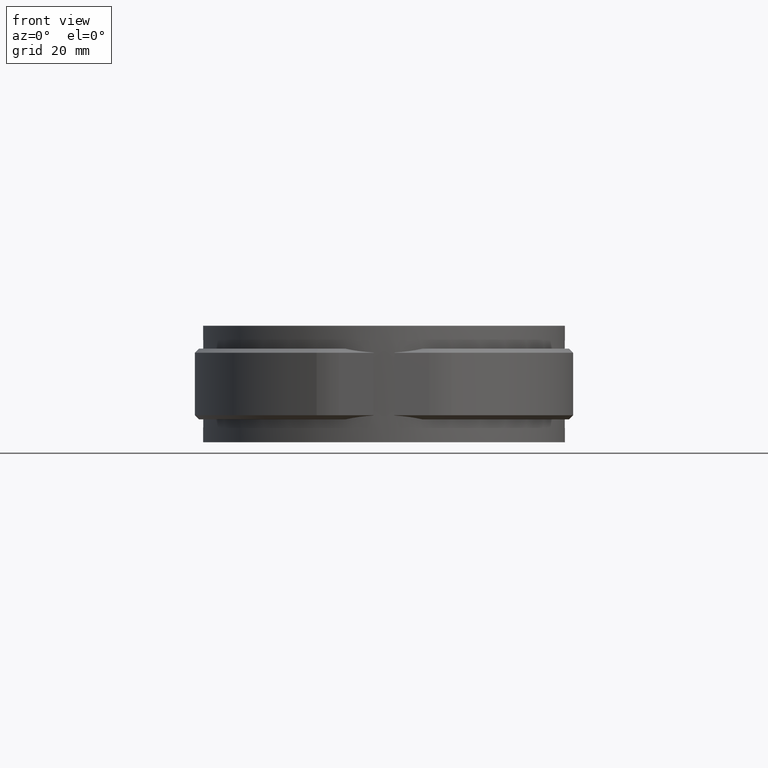
[diagram: clean part render]
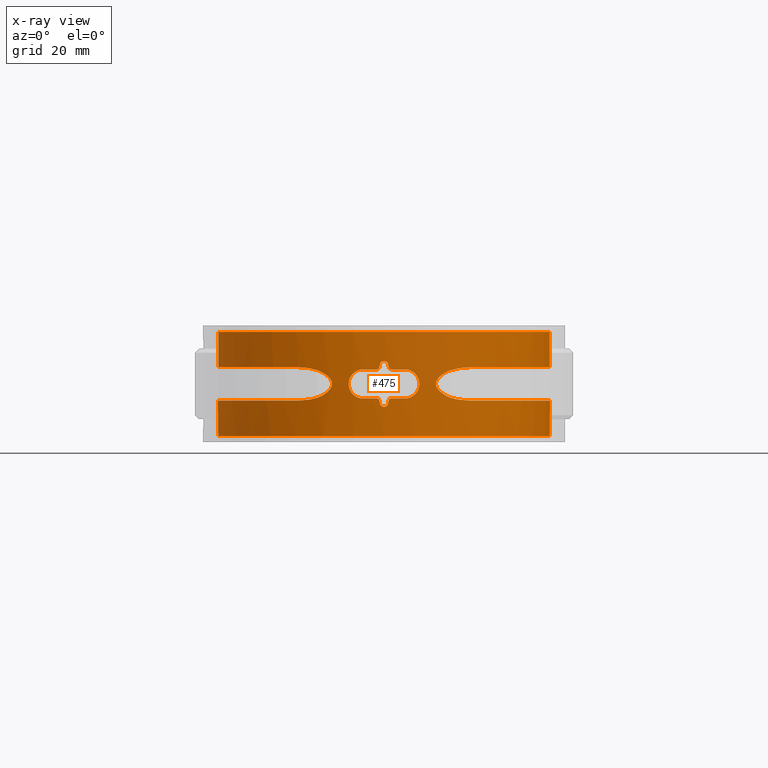
[diagram: x-ray — body ghosted, one internal face saturated and labeled with its STEP entity id]
A machine part, front view, then the same camera in x-ray: the body is ghosted and one INTERNAL B-rep face — a face not visible from any outside direction — is saturated and labeled: STEP entity #475.
In plain terms, the highlighted cylindrical surface (partial cylindrical patch) has radius 40 mm, axis along (0, 0, 1).
Its self-contained STEP definition (entity closure, byte-faithful):
#475 = ADVANCED_FACE( '', ( #855, #856 ), #857, .F. );
#855 = FACE_OUTER_BOUND( '', #1785, .T. );
#856 = FACE_BOUND( '', #1786, .T. );
#857 = CYLINDRICAL_SURFACE( '', #1787, 40.0000000000000 );
#1785 = EDGE_LOOP( '', ( #3266, #3267, #3268, #3269, #3270, #3271, #3272, #3273, #3274, #3275, #3276, #3277, #3278, #3279, #3280, #3281 ) );
#1786 = EDGE_LOOP( '', ( #3282, #3283, #3284, #3285, #3286, #3287, #3288, #3289, #3290, #3291, #3292, #3293, #3294, #3295, #3296, #3297 ) );
#1787 = AXIS2_PLACEMENT_3D( '', #3298, #3299, #3300 );
#3266 = ORIENTED_EDGE( '', *, *, #7348, .F. );
#3267 = ORIENTED_EDGE( '', *, *, #7342, .F. );
#3268 = ORIENTED_EDGE( '', *, *, #7356, .T. );
#3269 = ORIENTED_EDGE( '', *, *, #7357, .T. );
#3270 = ORIENTED_EDGE( '', *, *, #7358, .T. );
#3271 = ORIENTED_EDGE( '', *, *, #7359, .T. );
#3272 = ORIENTED_EDGE( '', *, *, #7360, .T. );
#3273 = ORIENTED_EDGE( '', *, *, #7361, .T. );
#3274 = ORIENTED_EDGE( '', *, *, #7362, .T. );
#3275 = ORIENTED_EDGE( '', *, *, #7363, .T. );
#3276 = ORIENTED_EDGE( '', *, *, #7288, .F. );
#3277 = ORIENTED_EDGE( '', *, *, #7344, .F. );
#3278 = ORIENTED_EDGE( '', *, *, #7350, .F. );
#3279 = ORIENTED_EDGE( '', *, *, #7364, .F. );
#3280 = ORIENTED_EDGE( '', *, *, #7365, .F. );
#3281 = ORIENTED_EDGE( '', *, *, #7366, .F. );
#3282 = ORIENTED_EDGE( '', *, *, #7367, .F. );
#3283 = ORIENTED_EDGE( '', *, *, #7368, .F. );
#3284 = ORIENTED_EDGE( '', *, *, #7369, .F. );
#3285 = ORIENTED_EDGE( '', *, *, #7370, .F. );
#3286 = ORIENTED_EDGE( '', *, *, #7371, .F. );
#3287 = ORIENTED_EDGE( '', *, *, #7351, .F. );
#3288 = ORIENTED_EDGE( '', *, *, #7372, .F. );
#3289 = ORIENTED_EDGE( '', *, *, #7373, .F. );
#3290 = ORIENTED_EDGE( '', *, *, #7374, .F. );
#3291 = ORIENTED_EDGE( '', *, *, #7375, .F. );
#3292 = ORIENTED_EDGE( '', *, *, #7376, .F. );
#3293 = ORIENTED_EDGE( '', *, *, #7377, .F. );
#3294 = ORIENTED_EDGE( '', *, *, #7378, .F. );
#3295 = ORIENTED_EDGE( '', *, *, #7379, .F. );
#3296 = ORIENTED_EDGE( '', *, *, #7380, .F. );
#3297 = ORIENTED_EDGE( '', *, *, #7381, .F. );
#3298 = CARTESIAN_POINT( '', ( 0.000000000000000, 0.000000000000000, -12.5000000000000 ) );
#3299 = DIRECTION( '', ( 0.000000000000000, 0.000000000000000, 1.00000000000000 ) );
#3300 = DIRECTION( '', ( -1.00000000000000, 6.16283340149655E-017, 0.000000000000000 ) );
#7288 = EDGE_CURVE( '', #8297, #8299, #8300, .T. );
#7342 = EDGE_CURVE( '', #8396, #8397, #8398, .T. );
#7344 = EDGE_CURVE( '', #8399, #8297, #8401, .T. );
#7348 = EDGE_CURVE( '', #8397, #8405, #8406, .T. );
#7350 = EDGE_CURVE( '', #8407, #8399, #8409, .T. );
#7351 = EDGE_CURVE( '', #8410, #8411, #8412, .T. );
#7356 = EDGE_CURVE( '', #8396, #8418, #8419, .T. );
#7357 = EDGE_CURVE( '', #8418, #8420, #8421, .T. );
#7358 = EDGE_CURVE( '', #8420, #8422, #8423, .T. );
#7359 = EDGE_CURVE( '', #8422, #8424, #8425, .T. );
#7360 = EDGE_CURVE( '', #8424, #8426, #8427, .T. );
#7361 = EDGE_CURVE( '', #8426, #8428, #8429, .T. );
#7362 = EDGE_CURVE( '', #8428, #8430, #8431, .T. );
#7363 = EDGE_CURVE( '', #8430, #8299, #8432, .T. );
#7364 = EDGE_CURVE( '', #8433, #8407, #8434, .T. );
#7365 = EDGE_CURVE( '', #8435, #8433, #8436, .T. );
#7366 = EDGE_CURVE( '', #8405, #8435, #8437, .T. );
#7367 = EDGE_CURVE( '', #8438, #8439, #8440, .T. );
#7368 = EDGE_CURVE( '', #8441, #8438, #8442, .T. );
#7369 = EDGE_CURVE( '', #8443, #8441, #8444, .F. );
#7370 = EDGE_CURVE( '', #8445, #8443, #8446, .T. );
#7371 = EDGE_CURVE( '', #8411, #8445, #8447, .T. );
#7372 = EDGE_CURVE( '', #8448, #8410, #8449, .F. );
#7373 = EDGE_CURVE( '', #8450, #8448, #8451, .T. );
#7374 = EDGE_CURVE( '', #8452, #8450, #8453, .T. );
#7375 = EDGE_CURVE( '', #8454, #8452, #8455, .T. );
#7376 = EDGE_CURVE( '', #8456, #8454, #8457, .F. );
#7377 = EDGE_CURVE( '', #8458, #8456, #8459, .T. );
#7378 = EDGE_CURVE( '', #8460, #8458, #8461, .T. );
#7379 = EDGE_CURVE( '', #8462, #8460, #8463, .T. );
#7380 = EDGE_CURVE( '', #8464, #8462, #8465, .F. );
#7381 = EDGE_CURVE( '', #8439, #8464, #8466, .T. );
#8297 = VERTEX_POINT( '', #9972 );
#8299 = VERTEX_POINT( '', #9974 );
#8300 = CIRCLE( '', #9975, 40.0000000000000 );
#8396 = VERTEX_POINT( '', #10557 );
#8397 = VERTEX_POINT( '', #10558 );
#8398 = LINE( '', #10559, #10560 );
#8399 = VERTEX_POINT( '', #10561 );
#8401 = LINE( '', #10596, #10597 );
#8405 = VERTEX_POINT( '', #10622 );
#8406 = B_SPLINE_CURVE_WITH_KNOTS( '', 3, ( #10623, #10624, #10625, #10626, #10627, #10628, #10629, #10630, #10631, #10632, #10633, #10634, #10635, #10636, #10637, #10638, #10639, #10640, #10641, #10642, #10643, #10644, #10645, #10646, #10647, #10648, #10649, #10650, #10651, #10652, #10653, #10654, #10655, #10656, #10657, #10658, #10659, #10660, #10661, #10662, #10663, #10664, #10665, #10666, #10667, #10668, #10669, #10670, #10671, #10672, #10673, #10674, #10675, #10676 ), .UNSPECIFIED., .F., .F., ( 4, 2, 2, 2, 2, 2, 2, 2, 2, 2, 2, 2, 2, 2, 2, 2, 2, 2, 2, 2, 2, 2, 2, 2, 2, 2, 4 ), ( 7.80625564189563E-018, 0.00610277583917852, 0.00915416375876777, 0.0106798577185624, 0.0122055516783570, 0.0183083275175355, 0.0213597154371248, 0.0228854093969194, 0.0244111033567141, 0.0305138791958926, 0.0366166550350711, 0.0381423489948657, 0.0396680429546603, 0.0427194308742496, 0.0488222067134281, 0.0518735946330173, 0.0549249825526066, 0.0610277583917851, 0.0640791463113743, 0.0671305342309636, 0.0732333100701420, 0.0762846979897313, 0.0793360859093205, 0.0854388617484990, 0.0884902496680883, 0.0915416375876775, 0.0976444134268560 ), .UNSPECIFIED. );
#8407 = VERTEX_POINT( '', #10677 );
#8409 = B_SPLINE_CURVE_WITH_KNOTS( '', 3, ( #10692, #10693, #10694, #10695, #10696, #10697, #10698, #10699, #10700, #10701, #10702, #10703, #10704, #10705, #10706, #10707, #10708, #10709, #10710, #10711, #10712, #10713, #10714, #10715, #10716, #10717, #10718, #10719, #10720, #10721, #10722, #10723, #10724, #10725, #10726, #10727, #10728, #10729, #10730, #10731, #10732, #10733, #10734, #10735, #10736, #10737, #10738, #10739, #10740, #10741, #10742, #10743, #10744, #10745 ), .UNSPECIFIED., .F., .F., ( 4, 2, 2, 2, 2, 2, 2, 2, 2, 2, 2, 2, 2, 2, 2, 2, 2, 2, 2, 2, 2, 2, 2, 2, 2, 2, 4 ), ( 5.69031608876084E-017, 0.00610273427301494, 0.00915410140952238, 0.0106797849777761, 0.0122054685460298, 0.0183082028190447, 0.0213595699555522, 0.0228852535238059, 0.0244109370920596, 0.0305136713650745, 0.0366164056380894, 0.0381420892063431, 0.0396677727745968, 0.0427191399111042, 0.0488218741841191, 0.0518732413206266, 0.0549246084571340, 0.0610273427301489, 0.0640787098666564, 0.0671300770031638, 0.0732328112761787, 0.0762841784126861, 0.0793355455491936, 0.0854382798222085, 0.0884896469587159, 0.0915410140952234, 0.0976437483682383 ), .UNSPECIFIED. );
#8410 = VERTEX_POINT( '', #10746 );
#8411 = VERTEX_POINT( '', #10747 );
#8412 = CIRCLE( '', #10748, 40.0000000000000 );
#8418 = VERTEX_POINT( '', #10757 );
#8419 = CIRCLE( '', #10758, 40.0000000000000 );
#8420 = VERTEX_POINT( '', #10759 );
#8421 = LINE( '', #10760, #10761 );
#8422 = VERTEX_POINT( '', #10762 );
#8423 = B_SPLINE_CURVE_WITH_KNOTS( '', 3, ( #10763, #10764, #10765, #10766, #10767, #10768, #10769, #10770, #10771, #10772, #10773, #10774, #10775, #10776, #10777, #10778, #10779, #10780, #10781, #10782, #10783, #10784, #10785, #10786, #10787, #10788, #10789, #10790, #10791, #10792, #10793, #10794, #10795, #10796, #10797, #10798, #10799, #10800, #10801, #10802, #10803, #10804, #10805, #10806, #10807, #10808, #10809, #10810, #10811, #10812, #10813, #10814, #10815, #10816 ), .UNSPECIFIED., .F., .F., ( 4, 2, 2, 2, 2, 2, 2, 2, 2, 2, 2, 2, 2, 2, 2, 2, 2, 2, 2, 2, 2, 2, 2, 2, 2, 2, 4 ), ( 8.67361737988404E-019, 0.00610271918897303, 0.00915407878345954, 0.0106797585807028, 0.0122054383779461, 0.0183081575669191, 0.0213595171614057, 0.0228851969586489, 0.0244108767558922, 0.0305135959448652, 0.0366163151338383, 0.0381419949310816, 0.0396676747283248, 0.0427190343228114, 0.0488217535117845, 0.0518731131062710, 0.0549244727007576, 0.0610271918897307, 0.0640785514842173, 0.0671299110787038, 0.0732326302676769, 0.0762839898621635, 0.0793353494566500, 0.0854380686456231, 0.0884894282401097, 0.0915407878345962, 0.0976435070235693 ), .UNSPECIFIED. );
#8424 = VERTEX_POINT( '', #10817 );
#8425 = B_SPLINE_CURVE_WITH_KNOTS( '', 3, ( #10818, #10819, #10820, #10821, #10822, #10823, #10824, #10825, #10826, #10827 ), .UNSPECIFIED., .F., .F., ( 4, 2, 2, 2, 4 ), ( 0.000000000000000, 0.00176684477246879, 0.00353368954493759, 0.00530053431740638, 0.00706737908987517 ), .UNSPECIFIED. );
#8426 = VERTEX_POINT( '', #10828 );
#8427 = B_SPLINE_CURVE_WITH_KNOTS( '', 3, ( #10829, #10830, #10831, #10832, #10833, #10834, #10835, #10836, #10837, #10838, #10839, #10840, #10841, #10842, #10843, #10844, #10845, #10846, #10847, #10848, #10849, #10850, #10851, #10852 ), .UNSPECIFIED., .F., .F., ( 4, 2, 2, 2, 2, 2, 2, 2, 2, 2, 2, 4 ), ( 4.90653893338680E-018, 0.000833127164306652, 0.00166625432861330, 0.00208281791076663, 0.00249938149291995, 0.00291594507507328, 0.00333250865722660, 0.00374907223937993, 0.00416563582153326, 0.00499876298583991, 0.00583189015014657, 0.00666501731445322 ), .UNSPECIFIED. );
#8428 = VERTEX_POINT( '', #10853 );
#8429 = B_SPLINE_CURVE_WITH_KNOTS( '', 3, ( #10854, #10855, #10856, #10857, #10858, #10859, #10860, #10861, #10862, #10863 ), .UNSPECIFIED., .F., .F., ( 4, 2, 2, 2, 4 ), ( 1.12711388471372E-015, 0.00175655975364134, 0.00351311950728156, 0.00526967926092178, 0.00702623901456199 ), .UNSPECIFIED. );
#8430 = VERTEX_POINT( '', #10864 );
#8431 = B_SPLINE_CURVE_WITH_KNOTS( '', 3, ( #10865, #10866, #10867, #10868, #10869, #10870, #10871, #10872, #10873, #10874, #10875, #10876, #10877, #10878, #10879, #10880, #10881, #10882, #10883, #10884, #10885, #10886, #10887, #10888, #10889, #10890, #10891, #10892, #10893, #10894, #10895, #10896, #10897, #10898, #10899, #10900, #10901, #10902, #10903, #10904, #10905, #10906, #10907, #10908, #10909, #10910, #10911, #10912, #10913, #10914, #10915, #10916, #10917, #10918 ), .UNSPECIFIED., .F., .F., ( 4, 2, 2, 2, 2, 2, 2, 2, 2, 2, 2, 2, 2, 2, 2, 2, 2, 2, 2, 2, 2, 2, 2, 2, 2, 2, 4 ), ( 5.69031608876084E-017, 0.00610273427301502, 0.00915410140952251, 0.0106797849777763, 0.0122054685460300, 0.0183082028190450, 0.0213595699555524, 0.0228852535238062, 0.0244109370920599, 0.0305136713650748, 0.0366164056380897, 0.0381420892063434, 0.0396677727745971, 0.0427191399111045, 0.0488218741841194, 0.0518732413206268, 0.0549246084571342, 0.0610273427301491, 0.0640787098666566, 0.0671300770031640, 0.0732328112761789, 0.0762841784126863, 0.0793355455491937, 0.0854382798222086, 0.0884896469587160, 0.0915410140952235, 0.0976437483682384 ), .UNSPECIFIED. );
#8432 = LINE( '', #10919, #10920 );
#8433 = VERTEX_POINT( '', #10921 );
#8434 = B_SPLINE_CURVE_WITH_KNOTS( '', 3, ( #10922, #10923, #10924, #10925, #10926, #10927, #10928, #10929, #10930, #10931 ), .UNSPECIFIED., .F., .F., ( 4, 2, 2, 2, 4 ), ( 0.000000000000000, 0.00175636630344163, 0.00351273260688327, 0.00526909891032491, 0.00702546521376655 ), .UNSPECIFIED. );
#8435 = VERTEX_POINT( '', #10932 );
#8436 = B_SPLINE_CURVE_WITH_KNOTS( '', 3, ( #10933, #10934, #10935, #10936, #10937, #10938, #10939, #10940, #10941, #10942, #10943, #10944, #10945, #10946, #10947, #10948, #10949, #10950, #10951, #10952, #10953, #10954, #10955, #10956 ), .UNSPECIFIED., .F., .F., ( 4, 2, 2, 2, 2, 2, 2, 2, 2, 2, 2, 4 ), ( 0.000000000000000, 0.000833282898715841, 0.00166656579743168, 0.00208320724678960, 0.00249984869614752, 0.00291649014550544, 0.00333313159486337, 0.00374977304422129, 0.00416641449357921, 0.00499969739229504, 0.00583298029101088, 0.00666626318972671 ), .UNSPECIFIED. );
#8437 = B_SPLINE_CURVE_WITH_KNOTS( '', 3, ( #10957, #10958, #10959, #10960, #10961, #10962, #10963, #10964, #10965, #10966 ), .UNSPECIFIED., .F., .F., ( 4, 2, 2, 2, 4 ), ( 0.000000000000000, 0.00176649911596389, 0.00353299823192777, 0.00529949734789166, 0.00706599646385555 ), .UNSPECIFIED. );
#8438 = VERTEX_POINT( '', #10967 );
#8439 = VERTEX_POINT( '', #10968 );
#8440 = B_SPLINE_CURVE_WITH_KNOTS( '', 3, ( #10969, #10970, #10971, #10972, #10973, #10974, #10975, #10976, #10977, #10978 ), .UNSPECIFIED., .F., .F., ( 4, 2, 2, 2, 4 ), ( 2.16840434497101E-019, 0.000671575606551869, 0.00134315121310374, 0.00201472681965561, 0.00268630242620747 ), .UNSPECIFIED. );
#8441 = VERTEX_POINT( '', #10979 );
#8442 = ELLIPSE( '', #10980, 182.222408133822, 40.0000000000000 );
#8443 = VERTEX_POINT( '', #10981 );
#8444 = B_SPLINE_CURVE_WITH_KNOTS( '', 3, ( #10982, #10983, #10984, #10985, #10986, #10987 ), .UNSPECIFIED., .F., .F., ( 4, 2, 4 ), ( 0.00156391016468112, 0.00189980761059275, 0.00223570505650438 ), .UNSPECIFIED. );
#8445 = VERTEX_POINT( '', #10988 );
#8446 = CIRCLE( '', #10989, 40.0000000000000 );
#8447 = B_SPLINE_CURVE_WITH_KNOTS( '', 3, ( #10990, #10991, #10992, #10993, #10994, #10995, #10996, #10997, #10998, #10999, #11000, #11001, #11002, #11003, #11004, #11005, #11006, #11007, #11008, #11009, #11010, #11011, #11012, #11013, #11014, #11015, #11016, #11017, #11018, #11019, #11020, #11021, #11022, #11023 ), .UNSPECIFIED., .F., .F., ( 4, 2, 2, 2, 2, 2, 2, 2, 2, 2, 2, 2, 2, 2, 2, 2, 4 ), ( 3.49644694633735E-018, 0.000688355682282628, 0.00137671136456525, 0.00206506704684788, 0.00275342272913050, 0.00344177841141312, 0.00413013409369574, 0.00481848977597837, 0.00550684545826099, 0.00619520114054361, 0.00688355682282623, 0.00757191250510885, 0.00826026818739147, 0.00894862386967409, 0.00963697955195672, 0.0103253352342393, 0.0110136909165220 ), .UNSPECIFIED. );
#8448 = VERTEX_POINT( '', #11024 );
#8449 = B_SPLINE_CURVE_WITH_KNOTS( '', 3, ( #11025, #11026, #11027, #11028, #11029, #11030 ), .UNSPECIFIED., .F., .F., ( 4, 2, 4 ), ( 0.000671964529204668, 0.00100786979542922, 0.00134377506165377 ), .UNSPECIFIED. );
#8450 = VERTEX_POINT( '', #11031 );
#8451 = ELLIPSE( '', #11032, 182.222315178002, 40.0000000000000 );
#8452 = VERTEX_POINT( '', #11033 );
#8453 = B_SPLINE_CURVE_WITH_KNOTS( '', 3, ( #11034, #11035, #11036, #11037, #11038, #11039, #11040, #11041, #11042, #11043 ), .UNSPECIFIED., .F., .F., ( 4, 2, 2, 2, 4 ), ( 1.08420217248550E-019, 0.000671575606551873, 0.00134315121310375, 0.00201472681965562, 0.00268630242620749 ), .UNSPECIFIED. );
#8454 = VERTEX_POINT( '', #11044 );
#8455 = ELLIPSE( '', #11045, 182.222408133861, 40.0000000000000 );
#8456 = VERTEX_POINT( '', #11046 );
#8457 = B_SPLINE_CURVE_WITH_KNOTS( '', 3, ( #11047, #11048, #11049, #11050, #11051, #11052 ), .UNSPECIFIED., .F., .F., ( 4, 2, 4 ), ( 5.44596817759155E-011, 0.000335897909198825, 0.000671795763937969 ), .UNSPECIFIED. );
#8458 = VERTEX_POINT( '', #11053 );
#8459 = CIRCLE( '', #11054, 40.0000000000000 );
#8460 = VERTEX_POINT( '', #11055 );
#8461 = B_SPLINE_CURVE_WITH_KNOTS( '', 3, ( #11056, #11057, #11058, #11059, #11060, #11061, #11062, #11063, #11064, #11065, #11066, #11067, #11068, #11069, #11070, #11071, #11072, #11073, #11074, #11075, #11076, #11077, #11078, #11079, #11080, #11081, #11082, #11083, #11084, #11085, #11086, #11087, #11088, #11089 ), .UNSPECIFIED., .F., .F., ( 4, 2, 2, 2, 2, 2, 2, 2, 2, 2, 2, 2, 2, 2, 2, 2, 4 ), ( 2.63797774002510E-018, 0.000688355682282619, 0.00137671136456524, 0.00206506704684785, 0.00275342272913047, 0.00344177841141309, 0.00413013409369571, 0.00481848977597832, 0.00550684545826094, 0.00619520114054356, 0.00688355682282618, 0.00757191250510879, 0.00826026818739141, 0.00894862386967403, 0.00963697955195665, 0.0103253352342393, 0.0110136909165219 ), .UNSPECIFIED. );
#8462 = VERTEX_POINT( '', #11090 );
#8463 = CIRCLE( '', #11091, 40.0000000000000 );
#8464 = VERTEX_POINT( '', #11092 );
#8465 = B_SPLINE_CURVE_WITH_KNOTS( '', 3, ( #11093, #11094, #11095, #11096, #11097, #11098 ), .UNSPECIFIED., .F., .F., ( 4, 2, 4 ), ( 0.00223588753289778, 0.00257179190502350, 0.00290769627714922 ), .UNSPECIFIED. );
#8466 = ELLIPSE( '', #11099, 182.222315177989, 40.0000000000000 );
#9972 = CARTESIAN_POINT( '', ( 6.51162790697674, 39.4664249964585, 12.5000000000000 ) );
#9974 = CARTESIAN_POINT( '', ( -6.51162790697671, 39.4664249964585, 12.5000000000000 ) );
#9975 = AXIS2_PLACEMENT_3D( '', #14315, #14316, #14317 );
#10557 = CARTESIAN_POINT( '', ( 6.51162790697674, 39.4664249964585, -12.5000000000000 ) );
#10558 = CARTESIAN_POINT( '', ( 6.51162790697675, 39.4664249964585, -3.99476153045297 ) );
#10559 = CARTESIAN_POINT( '', ( 6.51162790697674, 39.4664249964585, -12.5000000000000 ) );
#10560 = VECTOR( '', #14377, 1000.00000000000 );
#10561 = CARTESIAN_POINT( '', ( 6.51162790697675, 39.4664249964585, 3.99476153045367 ) );
#10596 = CARTESIAN_POINT( '', ( 6.51162790697674, 39.4664249964585, -12.5000000000000 ) );
#10597 = VECTOR( '', #14378, 1000.00000000000 );
#10622 = CARTESIAN_POINT( '', ( 20.5104165732763, -34.3412987611769, -3.99799169661705 ) );
#10623 = CARTESIAN_POINT( '', ( 6.51162790697678, 39.4664249964585, -3.99476153045293 ) );
#10624 = CARTESIAN_POINT( '', ( 8.53495288352019, 39.1325934071183, -3.99272135034209 ) );
#10625 = CARTESIAN_POINT( '', ( 10.5130646831966, 38.6473354466690, -3.99109379799083 ) );
#10626 = CARTESIAN_POINT( '', ( 13.4139605666969, 37.6974923364301, -3.99138417544951 ) );
#10627 = CARTESIAN_POINT( '', ( 14.3698314792586, 37.3437209194955, -3.99188604097960 ) );
#10628 = CARTESIAN_POINT( '', ( 15.7867477058704, 36.7564958080210, -3.99306110457947 ) );
#10629 = CARTESIAN_POINT( '', ( 16.2571002465550, 36.5508999075978, -3.99352102260368 ) );
#10630 = CARTESIAN_POINT( '', ( 17.1863506177110, 36.1232742830280, -3.99449983454583 ) );
#10631 = CARTESIAN_POINT( '', ( 17.6454921252865, 35.9011907080728, -3.99501858090477 ) );
#10632 = CARTESIAN_POINT( '', ( 19.9142055997671, 34.7500590063607, -3.99752468546485 ) );
#10633 = CARTESIAN_POINT( '', ( 21.6432622283324, 33.6995735144706, -3.99853823006595 ) );
#10634 = CARTESIAN_POINT( '', ( 24.1103084167790, 31.9329929975748, -3.99671644096764 ) );
#10635 = CARTESIAN_POINT( '', ( 24.9114757536921, 31.3121859618917, -3.99584621120915 ) );
#10636 = CARTESIAN_POINT( '', ( 26.0809127174933, 30.3322377233731, -3.99469213113096 ) );
#10637 = CARTESIAN_POINT( '', ( 26.4653335033275, 29.9974565218648, -3.99433033597600 ) );
#10638 = CARTESIAN_POINT( '', ( 27.2232276385591, 29.3113826381956, -3.99371461343297 ) );
#10639 = CARTESIAN_POINT( '', ( 27.5972286834889, 28.9595256767964, -3.99346072322826 ) );
#10640 = CARTESIAN_POINT( '', ( 29.4243300924912, 27.1732834517494, -3.99256952339721 ) );
#10641 = CARTESIAN_POINT( '', ( 30.7604293012254, 25.6492260526370, -3.99327631224663 ) );
#10642 = CARTESIAN_POINT( '', ( 33.1896895559695, 22.4172102428764, -3.99619699329636 ) );
#10643 = CARTESIAN_POINT( '', ( 34.2828551818520, 20.7092552906601, -3.99838919671339 ) );
#10644 = CARTESIAN_POINT( '', ( 35.4918408752563, 18.4551061949691, -3.99785814351189 ) );
#10645 = CARTESIAN_POINT( '', ( 35.7256871279989, 17.9982227126964, -3.99759953614053 ) );
#10646 = CARTESIAN_POINT( '', ( 36.1734905648128, 17.0803782727690, -3.99691654428396 ) );
#10647 = CARTESIAN_POINT( '', ( 36.3879895697995, 16.6184379773271, -3.99649210114288 ) );
#10648 = CARTESIAN_POINT( '', ( 37.0036792887563, 15.2236914724160, -3.99514082090619 ) );
#10649 = CARTESIAN_POINT( '', ( 37.3771028562828, 14.2819725280083, -3.99414715338225 ) );
#10650 = CARTESIAN_POINT( '', ( 38.3879555260021, 11.4216942444368, -3.99184066921029 ) );
#10651 = CARTESIAN_POINT( '', ( 38.9166017834184, 9.46821728036047, -3.99138115538722 ) );
#10652 = CARTESIAN_POINT( '', ( 39.4869722618034, 6.46655084298329, -3.99291293349495 ) );
#10653 = CARTESIAN_POINT( '', ( 39.6401520032055, 5.44974454825950, -3.99375387918314 ) );
#10654 = CARTESIAN_POINT( '', ( 39.8664708324323, 3.42138420019470, -3.99559726087782 ) );
#10655 = CARTESIAN_POINT( '', ( 39.9402789577391, 2.40825778991679, -3.99659645785729 ) );
#10656 = CARTESIAN_POINT( '', ( 40.0463223200979, -0.628031729822428, -3.99861588427725 ) );
#10657 = CARTESIAN_POINT( '', ( 39.9638282323543, -2.64812258463584, -3.99749168546499 ) );
#10658 = CARTESIAN_POINT( '', ( 39.6088083871164, -5.67206560300475, -3.99509394730883 ) );
#10659 = CARTESIAN_POINT( '', ( 39.4517602893787, -6.67901006802348, -3.99428179945951 ) );
#10660 = CARTESIAN_POINT( '', ( 39.0579210067179, -8.69076360582572, -3.99316619616957 ) );
#10661 = CARTESIAN_POINT( '', ( 38.8233714784960, -9.68383502088077, -3.99287194327849 ) );
#10662 = CARTESIAN_POINT( '', ( 38.0114565729935, -12.6195286708804, -3.99300023729264 ) );
#10663 = CARTESIAN_POINT( '', ( 37.3258843982272, -14.5216612545182, -3.99459919663546 ) );
#10664 = CARTESIAN_POINT( '', ( 36.0828943758750, -17.2930565946176, -3.99696275774958 ) );
#10665 = CARTESIAN_POINT( '', ( 35.6326397847529, -18.2031629627892, -3.99770284661138 ) );
#10666 = CARTESIAN_POINT( '', ( 34.6586892231728, -19.9953849978276, -3.99819060014801 ) );
#10667 = CARTESIAN_POINT( '', ( 34.1332620946227, -20.8796259724485, -3.99775518657564 ) );
#10668 = CARTESIAN_POINT( '', ( 32.4721589238086, -23.4459451228804, -3.99537450661080 ) );
#10669 = CARTESIAN_POINT( '', ( 31.2455139415073, -25.0560803262923, -3.99288213986612 ) );
#10670 = CARTESIAN_POINT( '', ( 29.2308090365786, -27.3236551135406, -3.99155132480044 ) );
#10671 = CARTESIAN_POINT( '', ( 28.5299899182725, -28.0548006175147, -3.99146164808447 ) );
#10672 = CARTESIAN_POINT( '', ( 27.0690036503259, -29.4669510435653, -3.99204566302713 ) );
#10673 = CARTESIAN_POINT( '', ( 26.3073883294554, -30.1491496918134, -3.99272209688942 ) );
#10674 = CARTESIAN_POINT( '', ( 23.9402287907548, -32.1102020683592, -3.99536784361436 ) );
#10675 = CARTESIAN_POINT( '', ( 22.2709806426754, -33.2897690265604, -3.99811024948978 ) );
#10676 = CARTESIAN_POINT( '', ( 20.5104038265172, -34.3412774205210, -3.99800921237569 ) );
#10677 = CARTESIAN_POINT( '', ( 20.5109887475866, -34.3409290914446, 3.99801484445683 ) );
#10692 = CARTESIAN_POINT( '', ( 20.5109882974306, -34.3409283372278, 3.99800924580514 ) );
#10693 = CARTESIAN_POINT( '', ( 22.2715330879467, -33.2893984181536, 3.99810959668888 ) );
#10694 = CARTESIAN_POINT( '', ( 23.9345561109925, -32.1135178742119, 3.99537839159577 ) );
#10695 = CARTESIAN_POINT( '', ( 26.2861494808505, -30.1674260932596, 3.99274376367593 ) );
#10696 = CARTESIAN_POINT( '', ( 27.0460845264157, -29.4882153727816, 3.99206065571324 ) );
#10697 = CARTESIAN_POINT( '', ( 28.1495570073374, -28.4229453753663, 3.99161091132247 ) );
#10698 = CARTESIAN_POINT( '', ( 28.5119557418210, -28.0594007208250, 3.99155406740326 ) );
#10699 = CARTESIAN_POINT( '', ( 29.2200768554196, -27.3212133258895, 3.99163511123742 ) );
#10700 = CARTESIAN_POINT( '', ( 29.5660061155469, -26.9464314043607, 3.99177246316105 ) );
#10701 = CARTESIAN_POINT( '', ( 31.2556251721938, -25.0445208372399, 3.99288992747179 ) );
#10702 = CARTESIAN_POINT( '', ( 32.4799254529248, -23.4338736601455, 3.99538538670038 ) );
#10703 = CARTESIAN_POINT( '', ( 34.1287433693654, -20.8866434370102, 3.99774883572219 ) );
#10704 = CARTESIAN_POINT( '', ( 34.6469414550380, -20.0155950625087, 3.99818732102674 ) );
#10705 = CARTESIAN_POINT( '', ( 35.3763232564733, -18.6755027329199, 3.99783561704992 ) );
#10706 = CARTESIAN_POINT( '', ( 35.6114559355239, -18.2232125944033, 3.99759028359356 ) );
#10707 = CARTESIAN_POINT( '', ( 36.0654883801928, -17.3072764757129, 3.99696214990444 ) );
#10708 = CARTESIAN_POINT( '', ( 36.2846729279584, -16.8429114533698, 3.99657871606682 ) );
#10709 = CARTESIAN_POINT( '', ( 37.3308023145222, -14.5117087206730, 3.99459126003318 ) );
#10710 = CARTESIAN_POINT( '', ( 38.0160375614398, -12.6042709573956, 3.99299667182716 ) );
#10711 = CARTESIAN_POINT( '', ( 39.0931063675589, -8.70722646857068, 3.99283217268103 ) );
#10712 = CARTESIAN_POINT( '', ( 39.4849453931600, -6.71762127384640, 3.99426417695261 ) );
#10713 = CARTESIAN_POINT( '', ( 39.7845626885578, -4.17735334245157, 3.99627930905256 ) );
#10714 = CARTESIAN_POINT( '', ( 39.8348711060311, -3.66657645980669, 3.99667903375525 ) );
#10715 = CARTESIAN_POINT( '', ( 39.9154873135517, -2.64851118393074, 3.99736689146744 ) );
#10716 = CARTESIAN_POINT( '', ( 39.9459407032109, -2.14011314594360, 3.99765588699895 ) );
#10717 = CARTESIAN_POINT( '', ( 40.0081568516306, -0.616795835644384, 3.99818599317970 ) );
#10718 = CARTESIAN_POINT( '', ( 40.0108176665087, 0.396249291709651, 3.99793698936537 ) );
#10719 = CARTESIAN_POINT( '', ( 39.9041225089171, 3.42799973285768, 3.99591349107488 ) );
#10720 = CARTESIAN_POINT( '', ( 39.6807546505770, 5.43936316762629, 3.99344784108578 ) );
#10721 = CARTESIAN_POINT( '', ( 39.1124052007271, 8.44138612677411, 3.99189990015437 ) );
#10722 = CARTESIAN_POINT( '', ( 38.8826275567704, 9.44365550374432, 3.99170496507878 ) );
#10723 = CARTESIAN_POINT( '', ( 38.3505131843943, 11.4140042704354, 3.99206503787619 ) );
#10724 = CARTESIAN_POINT( '', ( 38.0482241026974, 12.3837885076414, 3.99261496407873 ) );
#10725 = CARTESIAN_POINT( '', ( 37.0351224594609, 15.2480164315569, 3.99492922641165 ) );
#10726 = CARTESIAN_POINT( '', ( 36.2186755864039, 17.0975901577316, 3.99752138871845 ) );
#10727 = CARTESIAN_POINT( '', ( 34.7810612620351, 19.7815012093443, 3.99817896233448 ) );
#10728 = CARTESIAN_POINT( '', ( 34.2662168974678, 20.6610001063688, 3.99771800175472 ) );
#10729 = CARTESIAN_POINT( '', ( 33.1631070255308, 22.3888114528858, 3.99634858014351 ) );
#10730 = CARTESIAN_POINT( '', ( 32.5812198709236, 23.2270302552789, 3.99546469923904 ) );
#10731 = CARTESIAN_POINT( '', ( 30.7507558664753, 25.6615335603481, 3.99326616040069 ) );
#10732 = CARTESIAN_POINT( '', ( 29.4163121842757, 27.1805226277727, 3.99257650312152 ) );
#10733 = CARTESIAN_POINT( '', ( 27.2448791865162, 29.3042934793273, 3.99363106285371 ) );
#10734 = CARTESIAN_POINT( '', ( 26.4926528952148, 29.9863216261370, 3.99428699982917 ) );
#10735 = CARTESIAN_POINT( '', ( 24.9301106923875, 31.2974395591359, 3.99582664963345 ) );
#10736 = CARTESIAN_POINT( '', ( 24.1174031698361, 31.9278752279466, 3.99671097108936 ) );
#10737 = CARTESIAN_POINT( '', ( 21.6319841517251, 33.7077241974377, 3.99854701947517 ) );
#10738 = CARTESIAN_POINT( '', ( 19.9009684017686, 34.7568798347864, 3.99751018171557 ) );
#10739 = CARTESIAN_POINT( '', ( 17.1959045575560, 36.1292565138271, 3.99452189054558 ) );
#10740 = CARTESIAN_POINT( '', ( 16.2760470562788, 36.5530085697250, 3.99347140645353 ) );
#10741 = CARTESIAN_POINT( '', ( 14.3994671574065, 37.3321240871634, 3.99190620847736 ) );
#10742 = CARTESIAN_POINT( '', ( 13.4409630620114, 37.6880671698395, 3.99139244250216 ) );
#10743 = CARTESIAN_POINT( '', ( 10.5201569120612, 38.6461625349318, 3.99108355244924 ) );
#10744 = CARTESIAN_POINT( '', ( 8.53493835746082, 39.1325958037958, 3.99272136498990 ) );
#10745 = CARTESIAN_POINT( '', ( 6.51162790697672, 39.4664249964585, 3.99476153045369 ) );
#10746 = CARTESIAN_POINT( '', ( 1.64999999892706, -39.9659542611401, 3.49999999999999 ) );
#10747 = CARTESIAN_POINT( '', ( 5.00000000000004, -39.6862696659689, 3.50000000000000 ) );
#10748 = AXIS2_PLACEMENT_3D( '', #14382, #14383, #14384 );
#10757 = CARTESIAN_POINT( '', ( -6.51162790697671, 39.4664249964585, -12.5000000000000 ) );
#10758 = AXIS2_PLACEMENT_3D( '', #14391, #14392, #14393 );
#10759 = CARTESIAN_POINT( '', ( -6.51162790697668, 39.4664249964585, -3.99476153045294 ) );
#10760 = CARTESIAN_POINT( '', ( -6.51162790697668, 39.4664249964585, -12.5000000000000 ) );
#10761 = VECTOR( '', #14394, 1000.00000000000 );
#10762 = CARTESIAN_POINT( '', ( -20.5111791141636, -34.3408052408477, -3.99801823463930 ) );
#10763 = CARTESIAN_POINT( '', ( -6.51162790697669, 39.4664249964585, -3.99476153045293 ) );
#10764 = CARTESIAN_POINT( '', ( -8.53493410161190, 39.1325965059751, -3.99272136928046 ) );
#10765 = CARTESIAN_POINT( '', ( -10.5130279539011, 38.6473444393327, -3.99109382323871 ) );
#10766 = CARTESIAN_POINT( '', ( -13.4138981469341, 37.6975142913516, -3.99138415473972 ) );
#10767 = CARTESIAN_POINT( '', ( -14.3697607028862, 37.3437478880455, -3.99188599754767 ) );
#10768 = CARTESIAN_POINT( '', ( -15.7866647188094, 36.7565313828974, -3.99306102812655 ) );
#10769 = CARTESIAN_POINT( '', ( -16.2570132740849, 36.5509385274049, -3.99352093544687 ) );
#10770 = CARTESIAN_POINT( '', ( -17.1862564451431, 36.1233190228926, -3.99449973089709 ) );
#10771 = CARTESIAN_POINT( '', ( -17.6453944480713, 35.9012386518557, -3.99501847116553 ) );
#10772 = CARTESIAN_POINT( '', ( -19.9140908735876, 34.7501236850572, -3.99752456609860 ) );
#10773 = CARTESIAN_POINT( '', ( -21.6431353644786, 33.6996538457358, -3.99853825890261 ) );
#10774 = CARTESIAN_POINT( '', ( -24.1101657408788, 31.9331004191454, -3.99671657874546 ) );
#10775 = CARTESIAN_POINT( '', ( -24.9113282092944, 31.3123030201590, -3.99584636552089 ) );
#10776 = CARTESIAN_POINT( '', ( -26.0807585232278, 30.3323702213896, -3.99469227894919 ) );
#10777 = CARTESIAN_POINT( '', ( -26.4651772014952, 29.9975943309479, -3.99433047650688 ) );
#10778 = CARTESIAN_POINT( '', ( -27.2230673512573, 29.3115314158024, -3.99371473010867 ) );
#10779 = CARTESIAN_POINT( '', ( -27.5970669096102, 28.9596797637231, -3.99346082295790 ) );
#10780 = CARTESIAN_POINT( '', ( -29.4241630850068, 27.1734629968515, -3.99256952159442 ) );
#10781 = CARTESIAN_POINT( '', ( -30.7602601070854, 25.6494274784087, -3.99327617095895 ) );
#10782 = CARTESIAN_POINT( '', ( -33.1895204973078, 22.4174588431535, -3.99619672791392 ) );
#10783 = CARTESIAN_POINT( '', ( -34.2826884357538, 20.7095291775460, -3.99838899190819 ) );
#10784 = CARTESIAN_POINT( '', ( -35.4916805526932, 18.4554143645365, -3.99785828341769 ) );
#10785 = CARTESIAN_POINT( '', ( -35.7255289582317, 17.9985365534567, -3.99759973174239 ) );
#10786 = CARTESIAN_POINT( '', ( -36.1733369698436, 17.0807034362675, -3.99691682415534 ) );
#10787 = CARTESIAN_POINT( '', ( -36.3878384005917, 16.6187688466108, -3.99649241006720 ) );
#10788 = CARTESIAN_POINT( '', ( -37.0035358320510, 15.2240395987642, -3.99514118143811 ) );
#10789 = CARTESIAN_POINT( '', ( -37.3769651203869, 14.2823323449758, -3.99414750055720 ) );
#10790 = CARTESIAN_POINT( '', ( -38.3878368878961, 11.4220897545120, -3.99184087412865 ) );
#10791 = CARTESIAN_POINT( '', ( -38.9164984279059, 9.46863740462781, -3.99138112135355 ) );
#10792 = CARTESIAN_POINT( '', ( -39.4868968660539, 6.46700950494150, -3.99291260928581 ) );
#10793 = CARTESIAN_POINT( '', ( -39.6400870404560, 5.45021559767397, -3.99375347196206 ) );
#10794 = CARTESIAN_POINT( '', ( -39.8664286460136, 3.42187341208868, -3.99559679541962 ) );
#10795 = CARTESIAN_POINT( '', ( -39.9402486919307, 2.40875606879276, -3.99659601362352 ) );
#10796 = CARTESIAN_POINT( '', ( -40.0463296861551, -0.627506300075867, -3.99861576039096 ) );
#10797 = CARTESIAN_POINT( '', ( -39.9638631516003, -2.64757912032356, -3.99749209647623 ) );
#10798 = CARTESIAN_POINT( '', ( -39.6088897877061, -5.67149522479770, -3.99509440952334 ) );
#10799 = CARTESIAN_POINT( '', ( -39.4518580481491, -6.67843074166569, -3.99428221447026 ) );
#10800 = CARTESIAN_POINT( '', ( -39.0580535599030, -8.69016643881368, -3.99316643362948 ) );
#10801 = CARTESIAN_POINT( '', ( -38.8235199511766, -9.68323892945350, -3.99287204872080 ) );
#10802 = CARTESIAN_POINT( '', ( -38.0116570400583, -12.6189222727684, -3.99299994792829 ) );
#10803 = CARTESIAN_POINT( '', ( -37.3261215577155, -14.5210487588005, -3.99459862915447 ) );
#10804 = CARTESIAN_POINT( '', ( -36.0831911667867, -17.2924367027996, -3.99696225162839 ) );
#10805 = CARTESIAN_POINT( '', ( -35.6329572225748, -18.2025408989627, -3.99770244182726 ) );
#10806 = CARTESIAN_POINT( '', ( -34.6590498399018, -19.9947593083653, -3.99819066519196 ) );
#10807 = CARTESIAN_POINT( '', ( -34.1336433828667, -20.8790022988834, -3.99775561337607 ) );
#10808 = CARTESIAN_POINT( '', ( -32.4725990536716, -23.4453343128538, -3.99537537658930 ) );
#10809 = CARTESIAN_POINT( '', ( -31.2459946651288, -25.0554792458370, -3.99288282880547 ) );
#10810 = CARTESIAN_POINT( '', ( -29.2313541452719, -27.3230715796495, -3.99155149928256 ) );
#10811 = CARTESIAN_POINT( '', ( -28.5305570733498, -28.0542234264463, -3.99146161178900 ) );
#10812 = CARTESIAN_POINT( '', ( -27.0696163667225, -29.4663877788762, -3.99204522783427 ) );
#10813 = CARTESIAN_POINT( '', ( -26.3080275081629, -30.1485916828735, -3.99272146967918 ) );
#10814 = CARTESIAN_POINT( '', ( -23.9409280027775, -32.1096797506511, -3.99536688783765 ) );
#10815 = CARTESIAN_POINT( '', ( -22.2717197425104, -33.2892733814454, -3.99810937919603 ) );
#10816 = CARTESIAN_POINT( '', ( -20.5111831318918, -34.3408119666672, -3.99800925689699 ) );
#10817 = CARTESIAN_POINT( '', ( -14.3856735861856, -37.3235635204536, -2.50807055297062 ) );
#10818 = CARTESIAN_POINT( '', ( -20.5111831466144, -34.3408119578737, -3.99801447652890 ) );
#10819 = CARTESIAN_POINT( '', ( -20.0046201523807, -34.6433734221387, -3.99525321085695 ) );
#10820 = CARTESIAN_POINT( '', ( -19.4928079910565, -34.9338678123432, -3.97024487781494 ) );
#10821 = CARTESIAN_POINT( '', ( -18.4591524341130, -35.4909055269184, -3.87026097864936 ) );
#10822 = CARTESIAN_POINT( '', ( -17.9370733470117, -35.7574620161664, -3.79524994121727 ) );
#10823 = CARTESIAN_POINT( '', ( -16.8954594184341, -36.2612484773168, -3.57970890534575 ) );
#10824 = CARTESIAN_POINT( '', ( -16.3713128843512, -36.5005327490764, -3.43848763445183 ) );
#10825 = CARTESIAN_POINT( '', ( -15.3510662682343, -36.9412173723607, -3.06006310840644 ) );
#10826 = CARTESIAN_POINT( '', ( -14.8543140755018, -37.1429878563104, -2.82456888713855 ) );
#10827 = CARTESIAN_POINT( '', ( -14.3857268107801, -37.3235966129424, -2.50801064749024 ) );
#10828 = CARTESIAN_POINT( '', ( -14.3854481427290, -37.3236611307944, 2.50790012231364 ) );
#10829 = CARTESIAN_POINT( '', ( -14.3857267345960, -37.3235966423056, -2.50801035582645 ) );
#10830 = CARTESIAN_POINT( '', ( -14.1647665823223, -37.4087618636617, -2.35978320794990 ) );
#10831 = CARTESIAN_POINT( '', ( -13.9498359725864, -37.4893343146131, -2.20236875930206 ) );
#10832 = CARTESIAN_POINT( '', ( -13.5378597206025, -37.6400646280022, -1.86169039180106 ) );
#10833 = CARTESIAN_POINT( '', ( -13.3403464066952, -37.7103721363725, -1.67860501177913 ) );
#10834 = CARTESIAN_POINT( '', ( -13.0678420299307, -37.8053006456681, -1.37242531796424 ) );
#10835 = CARTESIAN_POINT( '', ( -12.9820927073644, -37.8348016335943, -1.26613881393278 ) );
#10836 = CARTESIAN_POINT( '', ( -12.8243212406101, -37.8885699180329, -1.04229317517548 ) );
#10837 = CARTESIAN_POINT( '', ( -12.7517712838772, -37.9130125423430, -0.923765720556635 ) );
#10838 = CARTESIAN_POINT( '', ( -12.6289855856139, -37.9540895555477, -0.675942426005272 ) );
#10839 = CARTESIAN_POINT( '', ( -12.5788664471775, -37.9706923861318, -0.547295209779475 ) );
#10840 = CARTESIAN_POINT( '', ( -12.5087951376739, -37.9938337836797, -0.277387517797046 ) );
#10841 = CARTESIAN_POINT( '', ( -12.4897915359728, -38.0000672030333, -0.136956996867024 ) );
#10842 = CARTESIAN_POINT( '', ( -12.4902038794771, -37.9999316722569, 0.141579756595228 ) );
#10843 = CARTESIAN_POINT( '', ( -12.5097950062975, -37.9935049030468, 0.282821384097255 ) );
#10844 = CARTESIAN_POINT( '', ( -12.5804942158815, -37.9701534261003, 0.551922443589739 ) );
#10845 = CARTESIAN_POINT( '', ( -12.6319109425111, -37.9531167594723, 0.682818861561631 ) );
#10846 = CARTESIAN_POINT( '', ( -12.8172865974349, -37.8910826917084, 1.05397280695212 ) );
#10847 = CARTESIAN_POINT( '', ( -12.9804010409485, -37.8357771595087, 1.27461400762338 ) );
#10848 = CARTESIAN_POINT( '', ( -13.3429219969135, -37.7094587210177, 1.68105626160541 ) );
#10849 = CARTESIAN_POINT( '', ( -13.5396451128762, -37.6394190503800, 1.86324931365991 ) );
#10850 = CARTESIAN_POINT( '', ( -13.9505241130231, -37.4890748512777, 2.20285479456798 ) );
#10851 = CARTESIAN_POINT( '', ( -14.1649601192486, -37.4086856652635, 2.35990339285905 ) );
#10852 = CARTESIAN_POINT( '', ( -14.3854906548164, -37.3236876342650, 2.50785198078896 ) );
#10853 = CARTESIAN_POINT( '', ( -20.5109887475866, -34.3409290914446, 3.99801484445683 ) );
#10854 = CARTESIAN_POINT( '', ( -14.3854911651623, -37.3236874375654, 2.50785144995025 ) );
#10855 = CARTESIAN_POINT( '', ( -14.8540779742574, -37.1430822544997, 2.82442956681819 ) );
#10856 = CARTESIAN_POINT( '', ( -15.3508255001802, -36.9413174309053, 3.05995687908289 ) );
#10857 = CARTESIAN_POINT( '', ( -16.3710758821186, -36.5006390564577, 3.43841664380319 ) );
#10858 = CARTESIAN_POINT( '', ( -16.8952310476515, -36.2613547752886, 3.57965165041338 ) );
#10859 = CARTESIAN_POINT( '', ( -17.9368360945194, -35.7575809194528, 3.79521084031850 ) );
#10860 = CARTESIAN_POINT( '', ( -18.4589018193985, -35.4910361793968, 3.87022923521494 ) );
#10861 = CARTESIAN_POINT( '', ( -19.4925936793178, -34.9339877070807, 3.97023164626254 ) );
#10862 = CARTESIAN_POINT( '', ( -20.0044181387419, -34.6434901811733, 3.99524627221623 ) );
#10863 = CARTESIAN_POINT( '', ( -20.5109883029578, -34.3409283339272, 3.99801341331802 ) );
#10864 = CARTESIAN_POINT( '', ( -6.51162790697669, 39.4664249964585, 3.99476153045367 ) );
#10865 = CARTESIAN_POINT( '', ( -20.5109882974306, -34.3409283372278, 3.99800924580514 ) );
#10866 = CARTESIAN_POINT( '', ( -22.2715330879467, -33.2893984181536, 3.99810959668888 ) );
#10867 = CARTESIAN_POINT( '', ( -23.9345561109925, -32.1135178742119, 3.99537839159577 ) );
#10868 = CARTESIAN_POINT( '', ( -26.2861494808505, -30.1674260932596, 3.99274376367593 ) );
#10869 = CARTESIAN_POINT( '', ( -27.0460845264157, -29.4882153727816, 3.99206065571324 ) );
#10870 = CARTESIAN_POINT( '', ( -28.1495570073374, -28.4229453753663, 3.99161091132247 ) );
#10871 = CARTESIAN_POINT( '', ( -28.5119557418210, -28.0594007208249, 3.99155406740328 ) );
#10872 = CARTESIAN_POINT( '', ( -29.2200768554196, -27.3212133258895, 3.99163511123743 ) );
#10873 = CARTESIAN_POINT( '', ( -29.5660061155469, -26.9464314043607, 3.99177246316105 ) );
#10874 = CARTESIAN_POINT( '', ( -31.2556251721938, -25.0445208372399, 3.99288992747179 ) );
#10875 = CARTESIAN_POINT( '', ( -32.4799254529248, -23.4338736601455, 3.99538538670038 ) );
#10876 = CARTESIAN_POINT( '', ( -34.1287433693655, -20.8866434370102, 3.99774883572219 ) );
#10877 = CARTESIAN_POINT( '', ( -34.6469414550379, -20.0155950625087, 3.99818732102675 ) );
#10878 = CARTESIAN_POINT( '', ( -35.3763232564733, -18.6755027329199, 3.99783561704993 ) );
#10879 = CARTESIAN_POINT( '', ( -35.6114559355240, -18.2232125944033, 3.99759028359355 ) );
#10880 = CARTESIAN_POINT( '', ( -36.0654883801928, -17.3072764757129, 3.99696214990443 ) );
#10881 = CARTESIAN_POINT( '', ( -36.2846729279584, -16.8429114533698, 3.99657871606682 ) );
#10882 = CARTESIAN_POINT( '', ( -37.3308023145222, -14.5117087206730, 3.99459126003318 ) );
#10883 = CARTESIAN_POINT( '', ( -38.0160375614398, -12.6042709573956, 3.99299667182716 ) );
#10884 = CARTESIAN_POINT( '', ( -39.0931063675589, -8.70722646857065, 3.99283217268104 ) );
#10885 = CARTESIAN_POINT( '', ( -39.4849453931601, -6.71762127384637, 3.99426417695258 ) );
#10886 = CARTESIAN_POINT( '', ( -39.7845626885578, -4.17735334245154, 3.99627930905253 ) );
#10887 = CARTESIAN_POINT( '', ( -39.8348711060310, -3.66657645980667, 3.99667903375525 ) );
#10888 = CARTESIAN_POINT( '', ( -39.9154873135517, -2.64851118393072, 3.99736689146744 ) );
#10889 = CARTESIAN_POINT( '', ( -39.9459407032110, -2.14011314594357, 3.99765588699894 ) );
#10890 = CARTESIAN_POINT( '', ( -40.0081568516307, -0.616795835644345, 3.99818599317969 ) );
#10891 = CARTESIAN_POINT( '', ( -40.0108176665087, 0.396249291709669, 3.99793698936537 ) );
#10892 = CARTESIAN_POINT( '', ( -39.9041225089171, 3.42799973285770, 3.99591349107488 ) );
#10893 = CARTESIAN_POINT( '', ( -39.6807546505770, 5.43936316762633, 3.99344784108578 ) );
#10894 = CARTESIAN_POINT( '', ( -39.1124052007270, 8.44138612677414, 3.99189990015437 ) );
#10895 = CARTESIAN_POINT( '', ( -38.8826275567704, 9.44365550374438, 3.99170496507878 ) );
#10896 = CARTESIAN_POINT( '', ( -38.3505131843943, 11.4140042704355, 3.99206503787618 ) );
#10897 = CARTESIAN_POINT( '', ( -38.0482241026974, 12.3837885076414, 3.99261496407873 ) );
#10898 = CARTESIAN_POINT( '', ( -37.0351224594609, 15.2480164315569, 3.99492922641165 ) );
#10899 = CARTESIAN_POINT( '', ( -36.2186755864039, 17.0975901577317, 3.99752138871844 ) );
#10900 = CARTESIAN_POINT( '', ( -34.7810612620351, 19.7815012093444, 3.99817896233446 ) );
#10901 = CARTESIAN_POINT( '', ( -34.2662168974678, 20.6610001063689, 3.99771800175472 ) );
#10902 = CARTESIAN_POINT( '', ( -33.1631070255307, 22.3888114528859, 3.99634858014350 ) );
#10903 = CARTESIAN_POINT( '', ( -32.5812198709235, 23.2270302552790, 3.99546469923904 ) );
#10904 = CARTESIAN_POINT( '', ( -30.7507558664752, 25.6615335603481, 3.99326616040069 ) );
#10905 = CARTESIAN_POINT( '', ( -29.4163121842757, 27.1805226277727, 3.99257650312151 ) );
#10906 = CARTESIAN_POINT( '', ( -27.2448791865161, 29.3042934793273, 3.99363106285370 ) );
#10907 = CARTESIAN_POINT( '', ( -26.4926528952147, 29.9863216261370, 3.99428699982917 ) );
#10908 = CARTESIAN_POINT( '', ( -24.9301106923875, 31.2974395591360, 3.99582664963345 ) );
#10909 = CARTESIAN_POINT( '', ( -24.1174031698361, 31.9278752279467, 3.99671097108934 ) );
#10910 = CARTESIAN_POINT( '', ( -21.6319841517251, 33.7077241974378, 3.99854701947516 ) );
#10911 = CARTESIAN_POINT( '', ( -19.9009684017686, 34.7568798347864, 3.99751018171557 ) );
#10912 = CARTESIAN_POINT( '', ( -17.1959045575560, 36.1292565138271, 3.99452189054558 ) );
#10913 = CARTESIAN_POINT( '', ( -16.2760470562788, 36.5530085697250, 3.99347140645353 ) );
#10914 = CARTESIAN_POINT( '', ( -14.3994671574064, 37.3321240871634, 3.99190620847736 ) );
#10915 = CARTESIAN_POINT( '', ( -13.4409630620113, 37.6880671698395, 3.99139244250215 ) );
#10916 = CARTESIAN_POINT( '', ( -10.5201569120611, 38.6461625349319, 3.99108355244923 ) );
#10917 = CARTESIAN_POINT( '', ( -8.53493835746075, 39.1325958037958, 3.99272136498991 ) );
#10918 = CARTESIAN_POINT( '', ( -6.51162790697669, 39.4664249964585, 3.99476153045369 ) );
#10919 = CARTESIAN_POINT( '', ( -6.51162790697668, 39.4664249964585, -12.5000000000000 ) );
#10920 = VECTOR( '', #14395, 1000.00000000000 );
#10921 = CARTESIAN_POINT( '', ( 14.3863679528086, -37.3236073850590, 2.50799476088408 ) );
#10922 = CARTESIAN_POINT( '', ( 14.3861170341492, -37.3234462058334, 2.50827425239846 ) );
#10923 = CARTESIAN_POINT( '', ( 14.8546740483540, -37.1428434821099, 2.82477863946930 ) );
#10924 = CARTESIAN_POINT( '', ( 15.3513939463986, -36.9410804417595, 3.06020444129883 ) );
#10925 = CARTESIAN_POINT( '', ( 16.3715443209787, -36.5004281734927, 3.43855367463757 ) );
#10926 = CARTESIAN_POINT( '', ( 16.8956409224285, -36.2611628146991, 3.57975157261569 ) );
#10927 = CARTESIAN_POINT( '', ( 17.9371298746228, -35.7574325520538, 3.79525652863054 ) );
#10928 = CARTESIAN_POINT( '', ( 18.4591350641112, -35.4909137859299, 3.87025742183895 ) );
#10929 = CARTESIAN_POINT( '', ( 19.4927090228779, -34.9339222479358, 3.97023718120375 ) );
#10930 = CARTESIAN_POINT( '', ( 20.0044753396786, -34.6434560164667, 3.99524658467650 ) );
#10931 = CARTESIAN_POINT( '', ( 20.5109883029578, -34.3409283339273, 3.99801341331800 ) );
#10932 = CARTESIAN_POINT( '', ( 14.3862499314187, -37.3235564469837, -2.50808420158611 ) );
#10933 = CARTESIAN_POINT( '', ( 14.3860947161935, -37.3234548081593, -2.50825719713393 ) );
#10934 = CARTESIAN_POINT( '', ( 14.1650870578726, -37.4086408425699, -2.36001323719475 ) );
#10935 = CARTESIAN_POINT( '', ( 13.9501097855115, -37.4892327119462, -2.20257982690629 ) );
#10936 = CARTESIAN_POINT( '', ( 13.5380430790204, -37.6399989631889, -1.86185735902235 ) );
#10937 = CARTESIAN_POINT( '', ( 13.3404876528961, -37.7103223997224, -1.67874910508176 ) );
#10938 = CARTESIAN_POINT( '', ( 13.0679194948984, -37.8052739264229, -1.37251965373304 ) );
#10939 = CARTESIAN_POINT( '', ( 12.9821503086353, -37.8347819102422, -1.26621528646245 ) );
#10940 = CARTESIAN_POINT( '', ( 12.8243435176662, -37.8885624189212, -1.04233003109608 ) );
#10941 = CARTESIAN_POINT( '', ( 12.7517778447100, -37.9130103553005, -0.923780278463759 ) );
#10942 = CARTESIAN_POINT( '', ( 12.6289703198475, -37.9540946547585, -0.675910298488296 ) );
#10943 = CARTESIAN_POINT( '', ( 12.5788442894505, -37.9706997267578, -0.547237630403153 ) );
#10944 = CARTESIAN_POINT( '', ( 12.5087724600411, -37.9938412501390, -0.277272378068751 ) );
#10945 = CARTESIAN_POINT( '', ( 12.4897766770491, -38.0000720869277, -0.136815328058038 ) );
#10946 = CARTESIAN_POINT( '', ( 12.4902192571288, -37.9999266178648, 0.141776128584608 ) );
#10947 = CARTESIAN_POINT( '', ( 12.5098330110884, -37.9934924156073, 0.283042220904126 ) );
#10948 = CARTESIAN_POINT( '', ( 12.5805827348952, -37.9701241234551, 0.552183055542391 ) );
#10949 = CARTESIAN_POINT( '', ( 12.6320293759243, -37.9530773914136, 0.683099301925560 ) );
#10950 = CARTESIAN_POINT( '', ( 12.8174880599234, -37.8910147444629, 1.05428938312896 ) );
#10951 = CARTESIAN_POINT( '', ( 12.9806665395828, -37.8356863614195, 1.27495833504793 ) );
#10952 = CARTESIAN_POINT( '', ( 13.3432936797184, -37.7093274937162, 1.68142623138996 ) );
#10953 = CARTESIAN_POINT( '', ( 13.5400686835995, -37.6392670050605, 1.86363113609139 ) );
#10954 = CARTESIAN_POINT( '', ( 13.9510505232334, -37.4888792835024, 2.20325809028995 ) );
#10955 = CARTESIAN_POINT( '', ( 14.1655374447815, -37.4084674067596, 2.36031632119534 ) );
#10956 = CARTESIAN_POINT( '', ( 14.3861187358324, -37.3234455499292, 2.50827330858808 ) );
#10957 = CARTESIAN_POINT( '', ( 20.5104037522459, -34.3412774648797, -3.99801021010479 ) );
#10958 = CARTESIAN_POINT( '', ( 20.0039330120169, -34.6437682321909, -3.99522610628912 ) );
#10959 = CARTESIAN_POINT( '', ( 19.4922162489714, -34.9341960345377, -3.97020353619534 ) );
#10960 = CARTESIAN_POINT( '', ( 18.4587580812988, -35.4911087030577, -3.87020692166320 ) );
#10961 = CARTESIAN_POINT( '', ( 17.9367791468211, -35.7576077515026, -3.79519734491721 ) );
#10962 = CARTESIAN_POINT( '', ( 16.8953676649282, -36.2612894108724, -3.57968163322709 ) );
#10963 = CARTESIAN_POINT( '', ( 16.3713259584831, -36.5005253092654, -3.43848478151927 ) );
#10964 = CARTESIAN_POINT( '', ( 15.3512707078213, -36.9411308590630, -3.06014663874500 ) );
#10965 = CARTESIAN_POINT( '', ( 14.8546010641153, -37.1428719546064, -2.82473136519487 ) );
#10966 = CARTESIAN_POINT( '', ( 14.3860933732801, -37.3234553257767, -2.50825826972603 ) );
#10967 = CARTESIAN_POINT( '', ( 0.975609999999996, -39.9881005441356, -4.71951200000000 ) );
#10968 = CARTESIAN_POINT( '', ( -0.975609757981835, -39.9881005500403, -4.71951218674743 ) );
#10969 = CARTESIAN_POINT( '', ( 0.975609999999993, -39.9881005441356, -4.71951200000000 ) );
#10970 = CARTESIAN_POINT( '', ( 0.925763371331523, -39.9893166776537, -4.94105267974691 ) );
#10971 = CARTESIAN_POINT( '', ( 0.802005910252929, -39.9923521624574, -5.13901836554673 ) );
#10972 = CARTESIAN_POINT( '', ( 0.447394593685771, -39.9978909824460, -5.42271116270368 ) );
#10973 = CARTESIAN_POINT( '', ( 0.227081912778195, -40.0000000011068, -5.50000007041390 ) );
#10974 = CARTESIAN_POINT( '', ( -0.227082302699954, -39.9999999988932, -5.49999993645324 ) );
#10975 = CARTESIAN_POINT( '', ( -0.447406497363359, -39.9978908204863, -5.42270356701545 ) );
#10976 = CARTESIAN_POINT( '', ( -0.802004817872634, -39.9923521555502, -5.13901699201277 ) );
#10977 = CARTESIAN_POINT( '', ( -0.925763086522174, -39.9893166843005, -4.94105285866284 ) );
#10978 = CARTESIAN_POINT( '', ( -0.975609757981832, -39.9881005500403, -4.71951218674743 ) );
#10979 = CARTESIAN_POINT( '', ( 1.16219512100790, -39.9831127165045, -3.89024390662615 ) );
#10980 = AXIS2_PLACEMENT_3D( '', #14396, #14397, #14398 );
#10981 = CARTESIAN_POINT( '', ( 1.64999999999988, -39.9659542610958, -3.49999999999873 ) );
#10982 = CARTESIAN_POINT( '', ( 1.16219512100909, -39.9831127165045, -3.89024390662650 ) );
#10983 = CARTESIAN_POINT( '', ( 1.18682260422235, -39.9823968657643, -3.78078842129123 ) );
#10984 = CARTESIAN_POINT( '', ( 1.25012550674397, -39.9805561039435, -3.67956490605386 ) );
#10985 = CARTESIAN_POINT( '', ( 1.42530054507878, -39.9746944768735, -3.53946942039952 ) );
#10986 = CARTESIAN_POINT( '', ( 1.53790570917231, -39.9705820895384, -3.50000000000008 ) );
#10987 = CARTESIAN_POINT( '', ( 1.64999999999980, -39.9659542610958, -3.50000000000003 ) );
#10988 = CARTESIAN_POINT( '', ( 5.00000000000004, -39.6862696659689, -3.50000000000000 ) );
#10989 = AXIS2_PLACEMENT_3D( '', #14399, #14400, #14401 );
#10990 = CARTESIAN_POINT( '', ( 5.00000000000003, -39.6862696659689, 3.50000000000000 ) );
#10991 = CARTESIAN_POINT( '', ( 5.23095136509755, -39.6571725289689, 3.50000000000000 ) );
#10992 = CARTESIAN_POINT( '', ( 5.45779676559707, -39.6265464331456, 3.47736695698800 ) );
#10993 = CARTESIAN_POINT( '', ( 5.90368738495562, -39.5625732607665, 3.38895381237562 ) );
#10994 = CARTESIAN_POINT( '', ( 6.12495009148325, -39.5288598727917, 3.32215734466161 ) );
#10995 = CARTESIAN_POINT( '', ( 6.54745611585484, -39.4610769604292, 3.14763747920894 ) );
#10996 = CARTESIAN_POINT( '', ( 6.74780210960525, -39.4272017682410, 3.04089310841412 ) );
#10997 = CARTESIAN_POINT( '', ( 7.12705106877609, -39.3604143226039, 2.78881639086541 ) );
#10998 = CARTESIAN_POINT( '', ( 7.30698205245323, -39.3272812944937, 2.64192430844929 ) );
#10999 = CARTESIAN_POINT( '', ( 7.63007981653904, -39.2658747861849, 2.32047633053014 ) );
#11000 = CARTESIAN_POINT( '', ( 7.77520387809054, -39.2372697970723, 2.14500769878537 ) );
#11001 = CARTESIAN_POINT( '', ( 8.03185498078005, -39.1855386851047, 1.76370915072088 ) );
#11002 = CARTESIAN_POINT( '', ( 8.14181960942831, -39.1627230303021, 1.55924891990340 ) );
#11003 = CARTESIAN_POINT( '', ( 8.31798701716319, -39.1256845778183, 1.13721141673162 ) );
#11004 = CARTESIAN_POINT( '', ( 8.38572508055197, -39.1111467974904, 0.916951362354175 ) );
#11005 = CARTESIAN_POINT( '', ( 8.47719495973564, -39.0914230305841, 0.461572674657913 ) );
#11006 = CARTESIAN_POINT( '', ( 8.49978697422126, -39.0864889883925, 0.232882672202097 ) );
#11007 = CARTESIAN_POINT( '', ( 8.50021005622811, -39.0863969821582, -0.226434905039804 ) );
#11008 = CARTESIAN_POINT( '', ( 8.47732359387224, -39.0913944087477, -0.459686458443316 ) );
#11009 = CARTESIAN_POINT( '', ( 8.38704876079879, -39.1108622408082, -0.911587466208322 ) );
#11010 = CARTESIAN_POINT( '', ( 8.32028323908447, -39.1251968816285, -1.13078246716965 ) );
#11011 = CARTESIAN_POINT( '', ( 8.14365628078075, -39.1623416892464, -1.55575543197229 ) );
#11012 = CARTESIAN_POINT( '', ( 8.03336523438957, -39.1852253420403, -1.76091137578077 ) );
#11013 = CARTESIAN_POINT( '', ( 7.77893154466846, -39.2365271923872, -2.14001238047914 ) );
#11014 = CARTESIAN_POINT( '', ( 7.63378750712438, -39.2651619029847, -2.31653739077719 ) );
#11015 = CARTESIAN_POINT( '', ( 7.30706733335810, -39.3272732077537, -2.64208675764161 ) );
#11016 = CARTESIAN_POINT( '', ( 7.13060067520371, -39.3597686839705, -2.78606839005142 ) );
#11017 = CARTESIAN_POINT( '', ( 6.75246376365469, -39.4264009258443, -3.03817495682843 ) );
#11018 = CARTESIAN_POINT( '', ( 6.54842493018418, -39.4609150995729, -3.14714764335352 ) );
#11019 = CARTESIAN_POINT( '', ( 6.12632215514465, -39.5286461495121, -3.32167976426262 ) );
#11020 = CARTESIAN_POINT( '', ( 5.90901117311085, -39.5617821418168, -3.38757743490076 ) );
#11021 = CARTESIAN_POINT( '', ( 5.46184874232285, -39.6259918184581, -3.47687761209738 ) );
#11022 = CARTESIAN_POINT( '', ( 5.23094991456143, -39.6571727117193, -3.50000000000002 ) );
#11023 = CARTESIAN_POINT( '', ( 5.00000000000003, -39.6862696659689, -3.50000000000002 ) );
#11024 = CARTESIAN_POINT( '', ( 1.16219499999999, -39.9831127200219, 3.89024400000000 ) );
#11025 = CARTESIAN_POINT( '', ( 1.64999999892705, -39.9659542611401, 3.49999999999999 ) );
#11026 = CARTESIAN_POINT( '', ( 1.53652471522384, -39.9706391040633, 3.49999999975647 ) );
#11027 = CARTESIAN_POINT( '', ( 1.42638265844409, -39.9746582605073, 3.53860520253556 ) );
#11028 = CARTESIAN_POINT( '', ( 1.24904986358738, -39.9805921038062, 3.68042387739788 ) );
#11029 = CARTESIAN_POINT( '', ( 1.18712532456199, -39.9823880666224, 3.77944255528170 ) );
#11030 = CARTESIAN_POINT( '', ( 1.16219499999999, -39.9831127200219, 3.89024400000000 ) );
#11031 = CARTESIAN_POINT( '', ( 0.975609757981829, -39.9881005500403, 4.71951218674745 ) );
#11032 = AXIS2_PLACEMENT_3D( '', #14402, #14403, #14404 );
#11033 = CARTESIAN_POINT( '', ( -0.975610000000001, -39.9881005441356, 4.71951200000000 ) );
#11034 = CARTESIAN_POINT( '', ( -0.975610000000001, -39.9881005441356, 4.71951200000000 ) );
#11035 = CARTESIAN_POINT( '', ( -0.925763371331534, -39.9893166776537, 4.94105267974692 ) );
#11036 = CARTESIAN_POINT( '', ( -0.802005910252943, -39.9923521624574, 5.13901836554674 ) );
#11037 = CARTESIAN_POINT( '', ( -0.447394593685788, -39.9978909824460, 5.42271116270369 ) );
#11038 = CARTESIAN_POINT( '', ( -0.227081912778210, -40.0000000011068, 5.50000007041392 ) );
#11039 = CARTESIAN_POINT( '', ( 0.227082302699941, -39.9999999988932, 5.49999993645327 ) );
#11040 = CARTESIAN_POINT( '', ( 0.447406497363350, -39.9978908204863, 5.42270356701547 ) );
#11041 = CARTESIAN_POINT( '', ( 0.802004817872628, -39.9923521555502, 5.13901699201279 ) );
#11042 = CARTESIAN_POINT( '', ( 0.925763086522169, -39.9893166843005, 4.94105285866286 ) );
#11043 = CARTESIAN_POINT( '', ( 0.975609757981827, -39.9881005500403, 4.71951218674745 ) );
#11044 = CARTESIAN_POINT( '', ( -1.16219510888263, -39.9831127168570, 3.89024396052175 ) );
#11045 = AXIS2_PLACEMENT_3D( '', #14405, #14406, #14407 );
#11046 = CARTESIAN_POINT( '', ( -1.65000000000002, -39.9659542610958, 3.50000000000000 ) );
#11047 = CARTESIAN_POINT( '', ( -1.16219509675616, -39.9831127172094, 3.89024401441720 ) );
#11048 = CARTESIAN_POINT( '', ( -1.18712640654937, -39.9823880351117, 3.77943807434171 ) );
#11049 = CARTESIAN_POINT( '', ( -1.24904959213459, -39.9805921068707, 3.68042516892891 ) );
#11050 = CARTESIAN_POINT( '', ( -1.42637750844337, -39.9746584388533, 3.53860831878808 ) );
#11051 = CARTESIAN_POINT( '', ( -1.53652947257990, -39.9706389076582, 3.50000000000001 ) );
#11052 = CARTESIAN_POINT( '', ( -1.65000000000002, -39.9659542610958, 3.50000000000001 ) );
#11053 = CARTESIAN_POINT( '', ( -4.99999999999995, -39.6862696659689, 3.50000000000000 ) );
#11054 = AXIS2_PLACEMENT_3D( '', #14408, #14409, #14410 );
#11055 = CARTESIAN_POINT( '', ( -4.99999999999995, -39.6862696659689, -3.49999999999999 ) );
#11056 = CARTESIAN_POINT( '', ( -4.99999999999995, -39.6862696659689, -3.49999999999999 ) );
#11057 = CARTESIAN_POINT( '', ( -5.23095136509747, -39.6571725289689, -3.49999999999999 ) );
#11058 = CARTESIAN_POINT( '', ( -5.45779676559699, -39.6265464331456, -3.47736695698799 ) );
#11059 = CARTESIAN_POINT( '', ( -5.90368738495553, -39.5625732607666, -3.38895381237561 ) );
#11060 = CARTESIAN_POINT( '', ( -6.12495009148315, -39.5288598727917, -3.32215734466160 ) );
#11061 = CARTESIAN_POINT( '', ( -6.54745611585474, -39.4610769604292, -3.14763747920892 ) );
#11062 = CARTESIAN_POINT( '', ( -6.74780210960515, -39.4272017682410, -3.04089310841411 ) );
#11063 = CARTESIAN_POINT( '', ( -7.12705106877599, -39.3604143226039, -2.78881639086540 ) );
#11064 = CARTESIAN_POINT( '', ( -7.30698205245313, -39.3272812944937, -2.64192430844928 ) );
#11065 = CARTESIAN_POINT( '', ( -7.63007981653894, -39.2658747861849, -2.32047633053013 ) );
#11066 = CARTESIAN_POINT( '', ( -7.77520387809044, -39.2372697970723, -2.14500769878536 ) );
#11067 = CARTESIAN_POINT( '', ( -8.03185498077994, -39.1855386851047, -1.76370915072087 ) );
#11068 = CARTESIAN_POINT( '', ( -8.14181960942820, -39.1627230303021, -1.55924891990340 ) );
#11069 = CARTESIAN_POINT( '', ( -8.31798701716308, -39.1256845778184, -1.13721141673162 ) );
#11070 = CARTESIAN_POINT( '', ( -8.38572508055186, -39.1111467974905, -0.916951362354174 ) );
#11071 = CARTESIAN_POINT( '', ( -8.47719495973553, -39.0914230305841, -0.461572674657914 ) );
#11072 = CARTESIAN_POINT( '', ( -8.49978697422115, -39.0864889883925, -0.232882672202102 ) );
#11073 = CARTESIAN_POINT( '', ( -8.50021005622800, -39.0863969821582, 0.226434905039798 ) );
#11074 = CARTESIAN_POINT( '', ( -8.47732359387213, -39.0913944087477, 0.459686458443309 ) );
#11075 = CARTESIAN_POINT( '', ( -8.38704876079868, -39.1108622408082, 0.911587466208314 ) );
#11076 = CARTESIAN_POINT( '', ( -8.32028323908436, -39.1251968816285, 1.13078246716964 ) );
#11077 = CARTESIAN_POINT( '', ( -8.14365628078064, -39.1623416892464, 1.55575543197228 ) );
#11078 = CARTESIAN_POINT( '', ( -8.03336523438947, -39.1852253420404, 1.76091137578076 ) );
#11079 = CARTESIAN_POINT( '', ( -7.77893154466836, -39.2365271923872, 2.14001238047912 ) );
#11080 = CARTESIAN_POINT( '', ( -7.63378750712427, -39.2651619029848, 2.31653739077717 ) );
#11081 = CARTESIAN_POINT( '', ( -7.30706733335800, -39.3272732077537, 2.64208675764159 ) );
#11082 = CARTESIAN_POINT( '', ( -7.13060067520362, -39.3597686839706, 2.78606839005140 ) );
#11083 = CARTESIAN_POINT( '', ( -6.75246376365460, -39.4264009258443, 3.03817495682841 ) );
#11084 = CARTESIAN_POINT( '', ( -6.54842493018409, -39.4609150995729, 3.14714764335350 ) );
#11085 = CARTESIAN_POINT( '', ( -6.12632215514456, -39.5286461495121, 3.32167976426260 ) );
#11086 = CARTESIAN_POINT( '', ( -5.90901117311076, -39.5617821418168, 3.38757743490074 ) );
#11087 = CARTESIAN_POINT( '', ( -5.46184874232275, -39.6259918184581, 3.47687761209735 ) );
#11088 = CARTESIAN_POINT( '', ( -5.23094991456134, -39.6571727117193, 3.49999999999999 ) );
#11089 = CARTESIAN_POINT( '', ( -4.99999999999995, -39.6862696659689, 3.49999999999999 ) );
#11090 = CARTESIAN_POINT( '', ( -1.64999999892713, -39.9659542611401, -3.49999999999862 ) );
#11091 = AXIS2_PLACEMENT_3D( '', #14411, #14412, #14413 );
#11092 = CARTESIAN_POINT( '', ( -1.16219500000001, -39.9831127200219, -3.89024399999999 ) );
#11093 = CARTESIAN_POINT( '', ( -1.64999999892721, -39.9659542611401, -3.50000000000000 ) );
#11094 = CARTESIAN_POINT( '', ( -1.53790945470695, -39.9705819349005, -3.49999999975941 ) );
#11095 = CARTESIAN_POINT( '', ( -1.42530238317640, -39.9746944131551, -3.53946831428075 ) );
#11096 = CARTESIAN_POINT( '', ( -1.25012568634048, -39.9805561001467, -3.67956432649096 ) );
#11097 = CARTESIAN_POINT( '', ( -1.18682239234070, -39.9823968719977, -3.78078892073663 ) );
#11098 = CARTESIAN_POINT( '', ( -1.16219500000001, -39.9831127200219, -3.89024399999999 ) );
#11099 = AXIS2_PLACEMENT_3D( '', #14414, #14415, #14416 );
#14315 = CARTESIAN_POINT( '', ( 0.000000000000000, 0.000000000000000, 12.5000000000000 ) );
#14316 = DIRECTION( '', ( 0.000000000000000, 0.000000000000000, -1.00000000000000 ) );
#14317 = DIRECTION( '', ( -1.00000000000000, 0.000000000000000, 0.000000000000000 ) );
#14377 = DIRECTION( '', ( 0.000000000000000, 0.000000000000000, 1.00000000000000 ) );
#14378 = DIRECTION( '', ( 0.000000000000000, 0.000000000000000, 1.00000000000000 ) );
#14382 = CARTESIAN_POINT( '', ( 0.000000000000000, 0.000000000000000, 3.50000000000000 ) );
#14383 = DIRECTION( '', ( 1.71056941445900E-049, 3.08148791101957E-033, 1.00000000000000 ) );
#14384 = DIRECTION( '', ( 0.000000000000000, -1.00000000000000, 3.08148791101957E-033 ) );
#14391 = CARTESIAN_POINT( '', ( 0.000000000000000, 0.000000000000000, -12.5000000000000 ) );
#14392 = DIRECTION( '', ( 0.000000000000000, 0.000000000000000, -1.00000000000000 ) );
#14393 = DIRECTION( '', ( -1.00000000000000, 0.000000000000000, 0.000000000000000 ) );
#14394 = DIRECTION( '', ( 0.000000000000000, 0.000000000000000, 1.00000000000000 ) );
#14395 = DIRECTION( '', ( 0.000000000000000, 0.000000000000000, 1.00000000000000 ) );
#14396 = CARTESIAN_POINT( '', ( 0.000000000000000, 0.000000000000000, -9.05556109223549 ) );
#14397 = DIRECTION( '', ( 0.975609806487710, 0.000000000000000, -0.219511971165612 ) );
#14398 = DIRECTION( '', ( -0.219511971165612, 0.000000000000000, -0.975609806487710 ) );
#14399 = CARTESIAN_POINT( '', ( 0.000000000000000, 0.000000000000000, -3.49999999999999 ) );
#14400 = DIRECTION( '', ( -1.11022302462516E-016, 0.000000000000000, -1.00000000000000 ) );
#14401 = DIRECTION( '', ( -1.00000000000000, 0.000000000000000, 1.11022302462516E-016 ) );
#14402 = CARTESIAN_POINT( '', ( 0.000000000000000, 0.000000000000000, 9.05555787945006 ) );
#14403 = DIRECTION( '', ( 0.975609781292650, 0.000000000000000, 0.219512083143749 ) );
#14404 = DIRECTION( '', ( 0.219512083143749, 0.000000000000000, -0.975609781292650 ) );
#14405 = CARTESIAN_POINT( '', ( 0.000000000000000, 0.000000000000000, 9.05556109223649 ) );
#14406 = DIRECTION( '', ( -0.975609806487721, 0.000000000000000, 0.219511971165565 ) );
#14407 = DIRECTION( '', ( -0.219511971165565, 0.000000000000000, -0.975609806487721 ) );
#14408 = CARTESIAN_POINT( '', ( 0.000000000000000, 0.000000000000000, 3.50000000000000 ) );
#14409 = DIRECTION( '', ( 1.36845553156722E-048, 1.23259516440784E-032, 1.00000000000000 ) );
#14410 = DIRECTION( '', ( 0.000000000000000, -1.00000000000000, 1.23259516440784E-032 ) );
#14411 = CARTESIAN_POINT( '', ( 0.000000000000000, 0.000000000000000, -3.49999999999999 ) );
#14412 = DIRECTION( '', ( -1.11022302462516E-016, 0.000000000000000, -1.00000000000000 ) );
#14413 = DIRECTION( '', ( -1.00000000000000, 0.000000000000000, 1.11022302462516E-016 ) );
#14414 = CARTESIAN_POINT( '', ( 0.000000000000000, 0.000000000000000, -9.05555787944974 ) );
#14415 = DIRECTION( '', ( -0.975609781292646, 0.000000000000000, -0.219512083143765 ) );
#14416 = DIRECTION( '', ( 0.219512083143765, 0.000000000000000, -0.975609781292646 ) );